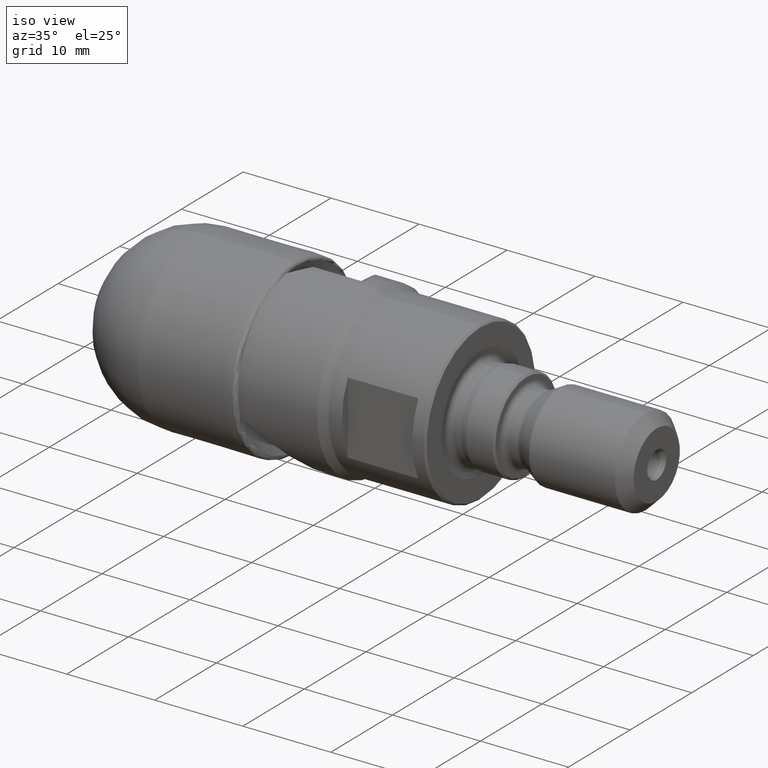
[diagram: clean part render]
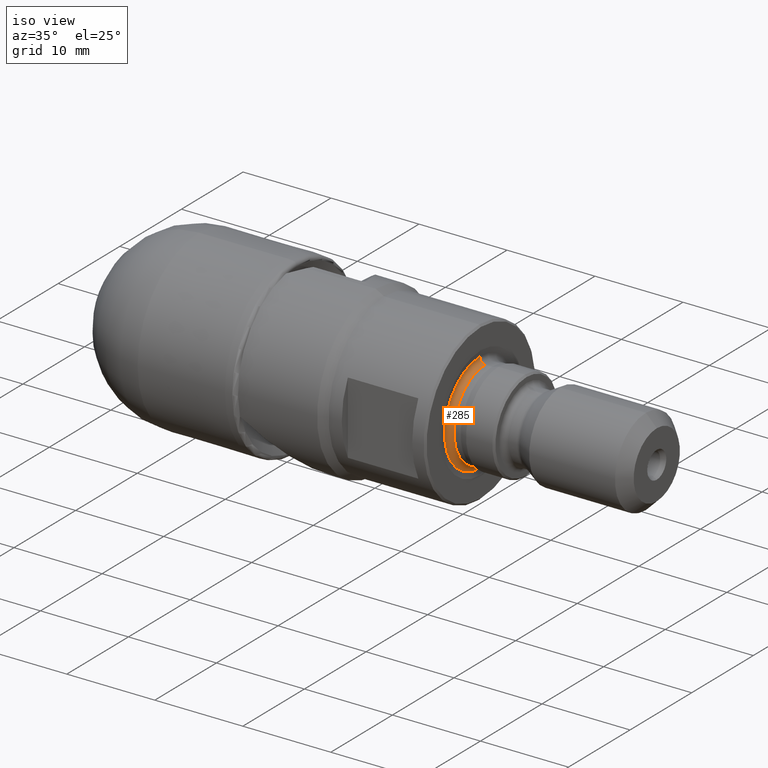
[diagram: same view with one face highlighted and labeled with its STEP entity id]
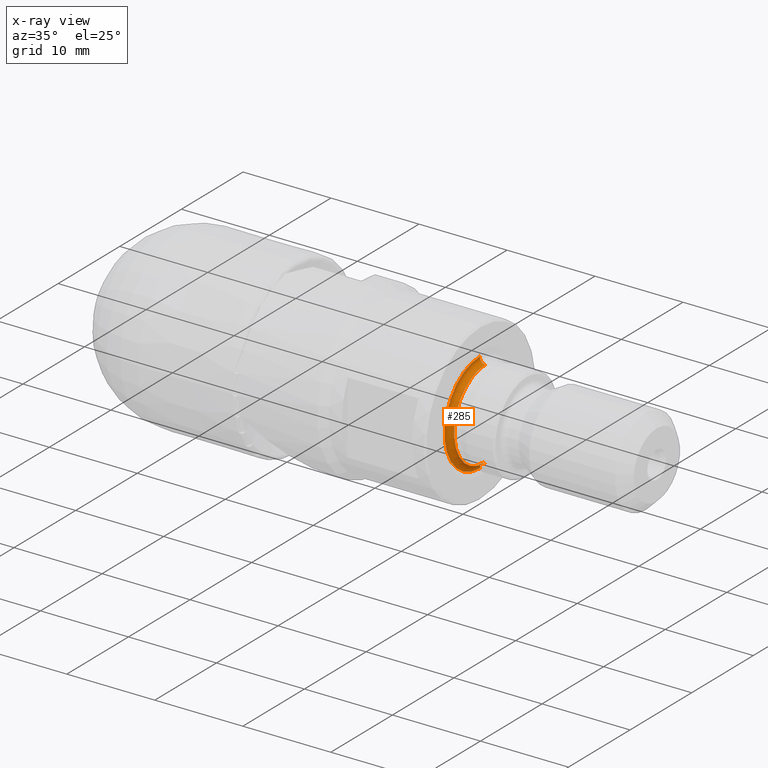
[diagram: x-ray of the same camera — body ghosted, the highlighted face saturated]
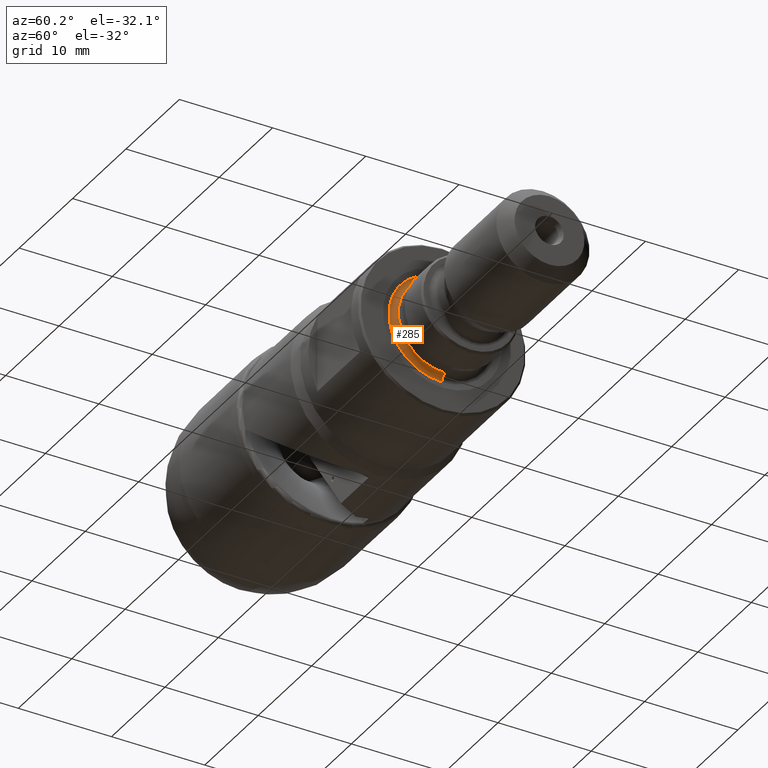
[diagram: same view with one face highlighted and labeled with its STEP entity id]
A machine part, iso view. The second image highlights one B-rep face of the part: STEP entity #285.
The next image is the same camera in x-ray: the body ghosted, the highlighted face saturated — about 0% of this face is hidden behind the body in this view.
A second angle (auxiliary view) of the same face is appended — the face is thin or edge-on in the first view.
In plain terms, the highlighted toroidal blend (fillet) surface has major radius 5.65 mm and minor (blend) radius 0.6 mm.
Its self-contained STEP definition (entity closure, byte-faithful):
#213 = CIRCLE ( 'NONE', #1883, 5.050000000000000711 ) ;
#285 = ADVANCED_FACE ( 'NONE', ( #4522 ), #720, .F. ) ;
#312 = DIRECTION ( 'NONE',  ( -1.000000000000000000, 0.0000000000000000000, 0.0000000000000000000 ) ) ;
#387 = DIRECTION ( 'NONE',  ( 0.0000000000000000000, 0.0000000000000000000, -1.000000000000000000 ) ) ;
#400 = EDGE_CURVE ( 'NONE', #462, #4566, #3942, .T. ) ;
#462 = VERTEX_POINT ( 'NONE', #1164 ) ;
#504 = EDGE_CURVE ( 'NONE', #462, #724, #4085, .T. ) ;
#720 = TOROIDAL_SURFACE ( 'NONE', #2293, 5.650000000000000355, 0.6000000000000050848 ) ;
#724 = VERTEX_POINT ( 'NONE', #2466 ) ;
#1068 = ORIENTED_EDGE ( 'NONE', *, *, #400, .T. ) ;
#1164 = CARTESIAN_POINT ( 'NONE',  ( 41.94308558875506066, 0.0000000000000000000, -5.733503860576043998 ) ) ;
#1502 = DIRECTION ( 'NONE',  ( 0.0000000000000000000, 0.0000000000000000000, 1.000000000000000000 ) ) ;
#1530 = ORIENTED_EDGE ( 'NONE', *, *, #4110, .F. ) ;
#1593 = DIRECTION ( 'NONE',  ( -1.000000000000000000, 0.0000000000000000000, 0.0000000000000000000 ) ) ;
#1609 = ORIENTED_EDGE ( 'NONE', *, *, #504, .F. ) ;
#1778 = CARTESIAN_POINT ( 'NONE',  ( 42.53724643000001038, 6.919254415182546323E-16, -5.650000000000000355 ) ) ;
#1883 = AXIS2_PLACEMENT_3D ( 'NONE', #4016, #1885, #1502 ) ;
#1885 = DIRECTION ( 'NONE',  ( -1.000000000000000000, 0.0000000000000000000, 0.0000000000000000000 ) ) ;
#1909 = VERTEX_POINT ( 'NONE', #3930 ) ;
#1912 = CARTESIAN_POINT ( 'NONE',  ( 42.53724643000001038, 6.602991743223788871E-16, -5.050000000000000711 ) ) ;
#2032 = EDGE_CURVE ( 'NONE', #4566, #1909, #213, .T. ) ;
#2172 = DIRECTION ( 'NONE',  ( 0.0000000000000000000, -1.000000000000000000, 0.0000000000000000000 ) ) ;
#2228 = CIRCLE ( 'NONE', #4321, 0.6000000000000050848 ) ;
#2293 = AXIS2_PLACEMENT_3D ( 'NONE', #3490, #312, #3424 ) ;
#2466 = CARTESIAN_POINT ( 'NONE',  ( 41.94308558875506066, 7.431767214657731568E-16, 5.733503860576043998 ) ) ;
#2586 = ORIENTED_EDGE ( 'NONE', *, *, #2032, .T. ) ;
#2659 = AXIS2_PLACEMENT_3D ( 'NONE', #4432, #1593, #3736 ) ;
#2885 = AXIS2_PLACEMENT_3D ( 'NONE', #1778, #3644, #3258 ) ;
#2920 = CARTESIAN_POINT ( 'NONE',  ( 42.53724643000001038, 0.0000000000000000000, 5.650000000000000355 ) ) ;
#3258 = DIRECTION ( 'NONE',  ( 0.0000000000000000000, -1.224646799147352221E-16, 1.000000000000000000 ) ) ;
#3424 = DIRECTION ( 'NONE',  ( 0.0000000000000000000, 0.0000000000000000000, 1.000000000000000000 ) ) ;
#3490 = CARTESIAN_POINT ( 'NONE',  ( 42.53724643000001038, 0.0000000000000000000, 5.421010862427522170E-17 ) ) ;
#3644 = DIRECTION ( 'NONE',  ( 0.0000000000000000000, 1.000000000000000000, 1.224646799147353207E-16 ) ) ;
#3665 = EDGE_LOOP ( 'NONE', ( #1609, #1068, #2586, #1530 ) ) ;
#3736 = DIRECTION ( 'NONE',  ( 0.0000000000000000000, 0.0000000000000000000, 1.000000000000000000 ) ) ;
#3930 = CARTESIAN_POINT ( 'NONE',  ( 42.53724643000001038, 0.0000000000000000000, 5.050000000000000711 ) ) ;
#3942 = CIRCLE ( 'NONE', #2885, 0.6000000000000050848 ) ;
#4016 = CARTESIAN_POINT ( 'NONE',  ( 42.53724643000001038, 0.0000000000000000000, 5.421010862427522170E-17 ) ) ;
#4085 = CIRCLE ( 'NONE', #2659, 5.733503860576043998 ) ;
#4110 = EDGE_CURVE ( 'NONE', #724, #1909, #2228, .T. ) ;
#4321 = AXIS2_PLACEMENT_3D ( 'NONE', #2920, #2172, #387 ) ;
#4432 = CARTESIAN_POINT ( 'NONE',  ( 41.94308558875506066, 0.0000000000000000000, 0.0000000000000000000 ) ) ;
#4522 = FACE_OUTER_BOUND ( 'NONE', #3665, .T. ) ;
#4566 = VERTEX_POINT ( 'NONE', #1912 ) ;